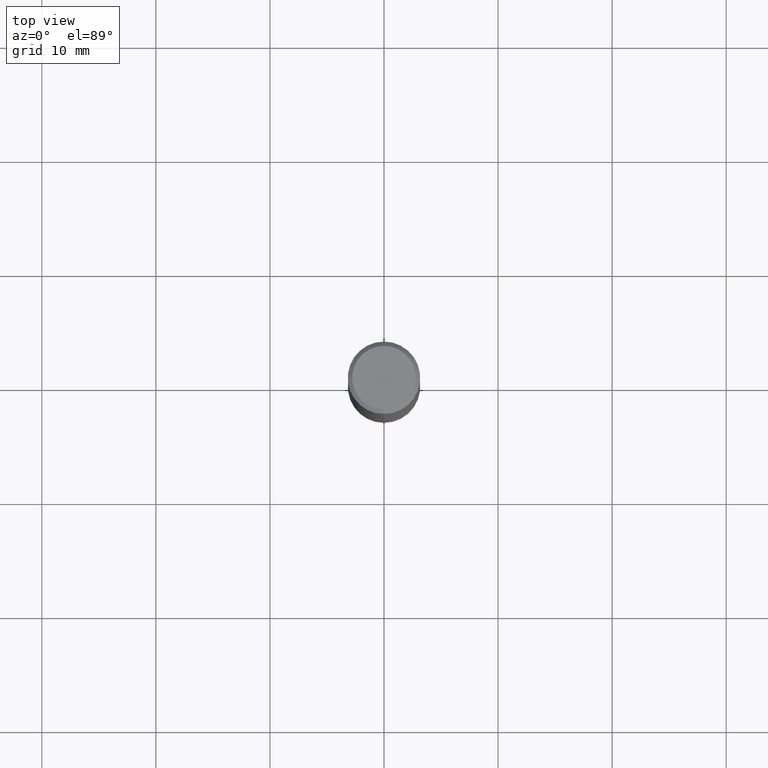
[diagram: clean part render]
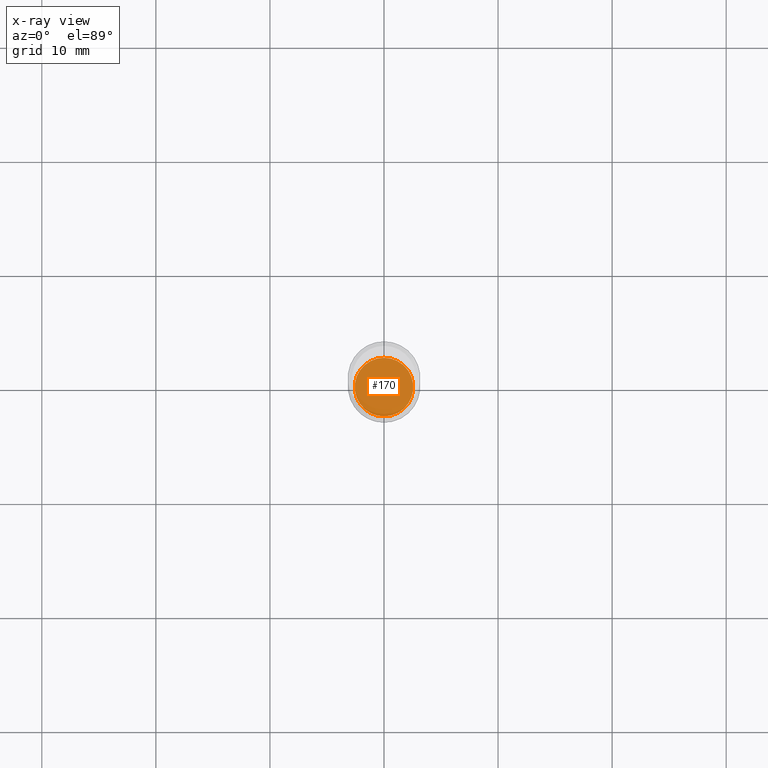
[diagram: x-ray — body ghosted, one internal face saturated and labeled with its STEP entity id]
A machine part, top view, then the same camera in x-ray: the body is ghosted and one INTERNAL B-rep face — a face not visible from any outside direction — is saturated and labeled: STEP entity #170.
In plain terms, the highlighted planar face has unit normal (-0, 0, 1).
Its self-contained STEP definition (entity closure, byte-faithful):
#30 = FACE_OUTER_BOUND ( 'NONE', #143, .T. ) ;
#35 = CARTESIAN_POINT ( 'NONE',  ( 4.585283503251433812E-29, -6.546485276603377605E-15, -1.875000000000000000 ) ) ;
#61 = DIRECTION ( 'NONE',  ( -2.445484535067431049E-29, 3.491458814188467583E-15, 1.000000000000000000 ) ) ;
#83 = CARTESIAN_POINT ( 'NONE',  ( 7.197797913250275462E-16, 0.1010499999999935339, -1.875000000000000444 ) ) ;
#85 = CIRCLE ( 'NONE', #406, 0.1010500000000000703 ) ;
#104 = VERTEX_POINT ( 'NONE', #304 ) ;
#112 = CIRCLE ( 'NONE', #258, 0.1010500000000000703 ) ;
#143 = EDGE_LOOP ( 'NONE', ( #286, #484 ) ) ;
#170 = ADVANCED_FACE ( 'NONE', ( #30 ), #504, .F. ) ;
#258 = AXIS2_PLACEMENT_3D ( 'NONE', #291, #61, #371 ) ;
#285 = DIRECTION ( 'NONE',  ( -2.445484535067431049E-29, 3.491458814188467583E-15, 1.000000000000000000 ) ) ;
#286 = ORIENTED_EDGE ( 'NONE', *, *, #288, .F. ) ;
#288 = EDGE_CURVE ( 'NONE', #104, #372, #85, .T. ) ;
#291 = CARTESIAN_POINT ( 'NONE',  ( 4.585283503251433812E-29, -6.546485276603377605E-15, -1.875000000000000000 ) ) ;
#304 = CARTESIAN_POINT ( 'NONE',  ( -7.056283785801518238E-16, -0.1010500000000066068, -1.874999999999999778 ) ) ;
#313 = DIRECTION ( 'NONE',  ( -6.982962677686265922E-15, -1.000000000000000000, 3.491458814188467188E-15 ) ) ;
#324 = AXIS2_PLACEMENT_3D ( 'NONE', #35, #462, #313 ) ;
#371 = DIRECTION ( 'NONE',  ( -6.982962677686265922E-15, -1.000000000000000000, 2.703461646377299523E-15 ) ) ;
#372 = VERTEX_POINT ( 'NONE', #83 ) ;
#393 = CARTESIAN_POINT ( 'NONE',  ( 4.585283503251433812E-29, -6.546485276603377605E-15, -1.875000000000000000 ) ) ;
#406 = AXIS2_PLACEMENT_3D ( 'NONE', #393, #285, #442 ) ;
#442 = DIRECTION ( 'NONE',  ( -6.982962677686265922E-15, -1.000000000000000000, 2.703461646377299523E-15 ) ) ;
#462 = DIRECTION ( 'NONE',  ( -2.445484535067431049E-29, 3.491458814188467188E-15, 1.000000000000000000 ) ) ;
#484 = ORIENTED_EDGE ( 'NONE', *, *, #490, .F. ) ;
#490 = EDGE_CURVE ( 'NONE', #372, #104, #112, .T. ) ;
#504 = PLANE ( 'NONE',  #324 ) ;